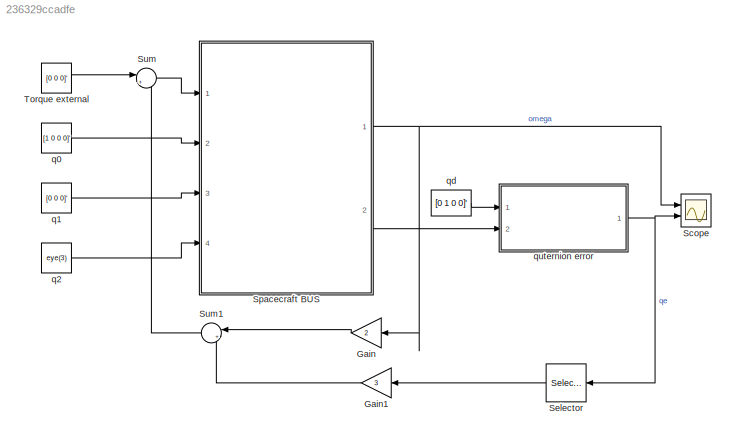
MODEL slx_236329ccadfe
KIND model
CONFIG AbsTol = auto
CONFIG EnableMultiTasking = off
CONFIG FixedStep = auto
CONFIG MaxStep = auto
CONFIG MinStep = auto
CONFIG RelTol = 1e-3
CONFIG SampleTimeConstraint = Unconstrained
CONFIG Solver = VariableStepAuto
CONFIG SolverName = VariableStepAuto
CONFIG StartTime = 0.0
CONFIG StopTime = 20
BLOCK [Gain] Gain
  Gain = 2
  OutDataTypeStr = Inherit: Inherit via internal rule
  ParamDataTypeStr = Inherit: Inherit via internal rule
  SaturateOnIntegerOverflow = off
BLOCK [Gain] Gain1
  Gain = 3
  OutDataTypeStr = Inherit: Inherit via internal rule
  ParamDataTypeStr = Inherit: Inherit via internal rule
  SaturateOnIntegerOverflow = off
BLOCK [Scope] Scope
  Floating = off
  NumInputPorts = 2
  Ports = [2]
  ScopeSpecificationString = Simulink.scopes.TimeScopeBlockCfg('CurrentConfiguration', extmgr.ConfigurationSet(extmgr.Configuration('Core','General UI',true),extmgr.Configuration('Core','Source UI',true),extmgr.Configuration('Sources','WiredSimulink',true),extmgr.Configuration('Visuals','Time Domain',true,'SerializedDisplays',{struct('MinYLimReal','-1.43596','MaxYLimReal','0.17312','YLabelReal','','MinYLimMag','0.00000','MaxY...<+2023ch>
BLOCK [Selector] Selector
  IndexOptions = Index vector (dialog)
  Indices = [1 2 3 ]
  InputPortWidth = 4
  OutputSizes = 1
  Ports = [1, 1]
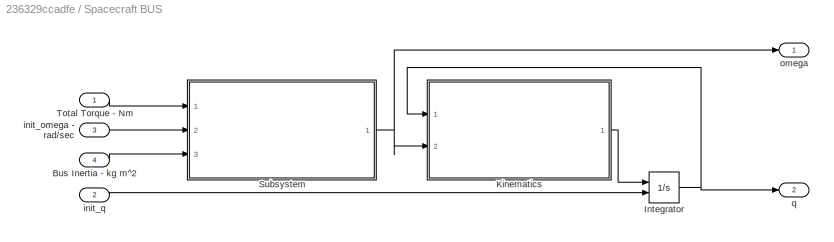
BLOCK [SubSystem] Spacecraft BUS
  Ports = [4, 2]
  RequestExecContextInheritance = off
BLOCK [Inport] Spacecraft BUS/Bus Inertia - kg m^2
  IconDisplay = Port number
  Port = 4
BLOCK [Integrator] Spacecraft BUS/Integrator
  InitialConditionSource = external
  Ports = [2, 1]
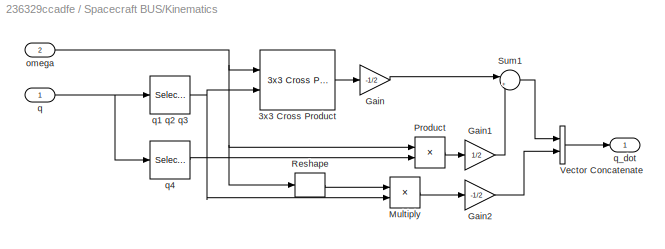
BLOCK [SubSystem] Spacecraft BUS/Kinematics
  Ports = [2, 1]
  RequestExecContextInheritance = off
BLOCK [Reference] Spacecraft BUS/Kinematics/3x3 Cross Product  REF=sharedutil/3x3 Cross Product
  Ports = [2, 1]
  SourceBlock = sharedutil/3x3 Cross Product
  SourceProductBaseCode = AE
  SourceProductName = Aerospace Blockset
  SourceType = CrossProduct
BLOCK [Gain] Spacecraft BUS/Kinematics/Gain
  Gain = -1/2
  OutDataTypeStr = Inherit: Inherit via internal rule
  ParamDataTypeStr = Inherit: Inherit via internal rule
  SaturateOnIntegerOverflow = off
BLOCK [Gain] Spacecraft BUS/Kinematics/Gain1
  Gain = 1/2
  OutDataTypeStr = Inherit: Inherit via internal rule
  ParamDataTypeStr = Inherit: Inherit via internal rule
  SaturateOnIntegerOverflow = off
BLOCK [Gain] Spacecraft BUS/Kinematics/Gain2
  Gain = -1/2
  OutDataTypeStr = Inherit: Inherit via internal rule
  ParamDataTypeStr = Inherit: Inherit via internal rule
  SaturateOnIntegerOverflow = off
BLOCK [Product] Spacecraft BUS/Kinematics/Multiply
  InputSameDT = off
  Multiplication = Matrix(*)
  OutDataTypeStr = Inherit: Inherit via internal rule
  Ports = [2, 1]
  RndMeth = Floor
  SaturateOnIntegerOverflow = off
BLOCK [Product] Spacecraft BUS/Kinematics/Product
  InputSameDT = off
  Multiplication = Matrix(*)
  OutDataTypeStr = Inherit: Inherit via internal rule
  Ports = [2, 1]
  RndMeth = Floor
  SaturateOnIntegerOverflow = off
BLOCK [Reshape] Spacecraft BUS/Kinematics/Reshape
  OutputDimensionality = Row vector (2-D)
  Ports = [1, 1]
BLOCK [Sum] Spacecraft BUS/Kinematics/Sum1
  IconShape = round
  InputSameDT = off
  Inputs = |++
  OutDataTypeStr = Inherit: Inherit via internal rule
  Ports = [2, 1]
  SaturateOnIntegerOverflow = off
BLOCK [Concatenate] Spacecraft BUS/Kinematics/Vector Concatenate
  Ports = [2, 1]
BLOCK [Inport] Spacecraft BUS/Kinematics/omega
  IconDisplay = Port number
  Port = 2
BLOCK [Inport] Spacecraft BUS/Kinematics/q
  IconDisplay = Port number
BLOCK [Selector] Spacecraft BUS/Kinematics/q1 q2 q3
  IndexOptions = Index vector (dialog)
  Indices = [1 2 3]
  InputPortWidth = 4
  OutputSizes = 1
  Ports = [1, 1]
BLOCK [Selector] Spacecraft BUS/Kinematics/q4
  IndexOptions = Index vector (dialog)
  Indices = [4]
  InputPortWidth = 4
  OutputSizes = 1
  Ports = [1, 1]
BLOCK [Outport] Spacecraft BUS/Kinematics/q_dot
  IconDisplay = Port number
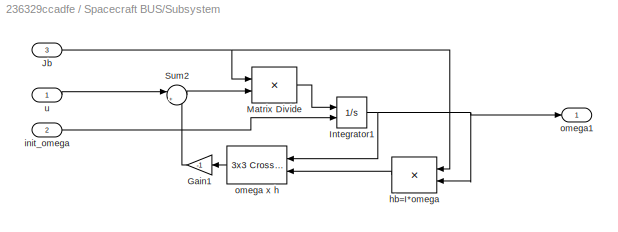
BLOCK [SubSystem] Spacecraft BUS/Subsystem
  Ports = [3, 1]
  RequestExecContextInheritance = off
BLOCK [Gain] Spacecraft BUS/Subsystem/Gain1
  Gain = -1
  OutDataTypeStr = Inherit: Inherit via internal rule
  ParamDataTypeStr = Inherit: Inherit via internal rule
  SaturateOnIntegerOverflow = off
BLOCK [Integrator] Spacecraft BUS/Subsystem/Integrator1
  InitialConditionSource = external
  Ports = [2, 1]
  ZeroCross = off
BLOCK [Inport] Spacecraft BUS/Subsystem/Jb
  IconDisplay = Port number
  Port = 3
BLOCK [Product] Spacecraft BUS/Subsystem/Matrix Divide
  InputSameDT = off
  Inputs = /*
  Multiplication = Matrix(*)
  OutDataTypeStr = Inherit: Inherit via internal rule
  Ports = [2, 1]
  RndMeth = Floor
  SaturateOnIntegerOverflow = off
BLOCK [Sum] Spacecraft BUS/Subsystem/Sum2
  IconShape = round
  InputSameDT = off
  Inputs = |++
  OutDataTypeStr = Inherit: Inherit via internal rule
  Ports = [2, 1]
  SaturateOnIntegerOverflow = off
BLOCK [Product] Spacecraft BUS/Subsystem/hb=I*omega
  InputSameDT = off
  Multiplication = Matrix(*)
  OutDataTypeStr = Inherit: Inherit via internal rule
  Ports = [2, 1]
  RndMeth = Floor
  SaturateOnIntegerOverflow = off
BLOCK [Inport] Spacecraft BUS/Subsystem/init_omega
  IconDisplay = Port number
  Port = 2
BLOCK [Reference] Spacecraft BUS/Subsystem/omega x h  REF=sharedutil/3x3 Cross Product
  Ports = [2, 1]
  SourceBlock = sharedutil/3x3 Cross Product
  SourceProductBaseCode = AE
  SourceProductName = Aerospace Blockset
  SourceType = CrossProduct
BLOCK [Outport] Spacecraft BUS/Subsystem/omega1
  IconDisplay = Port number
BLOCK [Inport] Spacecraft BUS/Subsystem/u
  IconDisplay = Port number
BLOCK [Inport] Spacecraft BUS/Total Torque - Nm
  IconDisplay = Port number
BLOCK [Inport] Spacecraft BUS/init_omega - rad//sec
  IconDisplay = Port number
  Port = 3
BLOCK [Inport] Spacecraft BUS/init_q
  IconDisplay = Port number
  Port = 2
BLOCK [Outport] Spacecraft BUS/omega
  IconDisplay = Port number
BLOCK [Outport] Spacecraft BUS/q
  IconDisplay = Port number
  Port = 2
BLOCK [Sum] Sum
  IconShape = round
  InputSameDT = off
  Inputs = |+-
  OutDataTypeStr = Inherit: Inherit via internal rule
  Ports = [2, 1]
  SaturateOnIntegerOverflow = off
BLOCK [Sum] Sum1
  IconShape = round
  InputSameDT = off
  Inputs = |++
  OutDataTypeStr = Inherit: Inherit via internal rule
  Ports = [2, 1]
  SaturateOnIntegerOverflow = off
BLOCK [Constant] Torque external
  Value = [0 0 0]'
BLOCK [Constant] q0
  Value = [1 0 0 0]'
BLOCK [Constant] q1
  Value = [0 0 0]'
BLOCK [Constant] q2
  Value = eye(3)
BLOCK [Constant] qd
  Value = [0 1 0 0]'
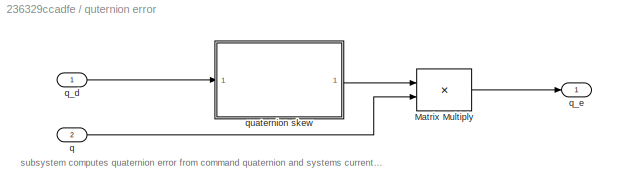
BLOCK [SubSystem] quternion error
  Ports = [2, 1]
  RequestExecContextInheritance = off
BLOCK [Product] quternion error/Matrix Multiply
  InputSameDT = off
  Multiplication = Matrix(*)
  OutDataTypeStr = Inherit: Inherit via internal rule
  Ports = [2, 1]
  RndMeth = Floor
  SaturateOnIntegerOverflow = off
BLOCK [Inport] quternion error/q
  IconDisplay = Port number
  Port = 2
BLOCK [Inport] quternion error/q_d
  IconDisplay = Port number
BLOCK [Outport] quternion error/q_e
  IconDisplay = Port number
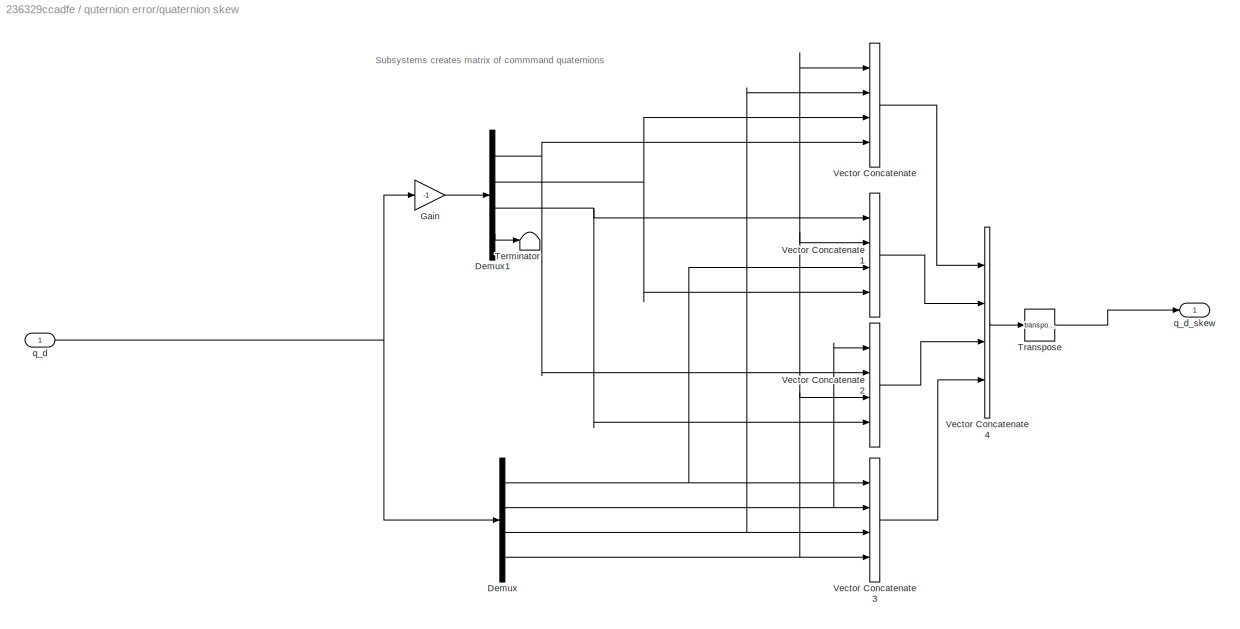
BLOCK [SubSystem] quternion error/quaternion skew
  Ports = [1, 1]
  RequestExecContextInheritance = off
BLOCK [Demux] quternion error/quaternion skew/Demux
  DisplayOption = bar
  Ports = [1, 4]
BLOCK [Demux] quternion error/quaternion skew/Demux1
  DisplayOption = bar
  Ports = [1, 4]
BLOCK [Gain] quternion error/quaternion skew/Gain
  Gain = -1
  OutDataTypeStr = Inherit: Inherit via internal rule
  ParamDataTypeStr = Inherit: Inherit via internal rule
  SaturateOnIntegerOverflow = off
BLOCK [Terminator] quternion error/quaternion skew/Terminator
BLOCK [Math] quternion error/quaternion skew/Transpose
  Operator = transpose
  Ports = [1, 1]
BLOCK [Concatenate] quternion error/quaternion skew/Vector Concatenate
  NumInputs = 4
  Ports = [4, 1]
BLOCK [Concatenate] quternion error/quaternion skew/Vector Concatenate1
  NumInputs = 4
  Ports = [4, 1]
BLOCK [Concatenate] quternion error/quaternion skew/Vector Concatenate2
  NumInputs = 4
  Ports = [4, 1]
BLOCK [Concatenate] quternion error/quaternion skew/Vector Concatenate3
  NumInputs = 4
  Ports = [4, 1]
BLOCK [Concatenate] quternion error/quaternion skew/Vector Concatenate4
  ConcatenateDimension = [2]
  Mode = Multidimensional array
  NumInputs = 4
  Ports = [4, 1]
BLOCK [Inport] quternion error/quaternion skew/q_d
  IconDisplay = Port number
BLOCK [Outport] quternion error/quaternion skew/q_d_skew
  IconDisplay = Port number
ANNOTATION quternion error: subsystem computes quaternion error from command quaternion and systems current quaternion
ANNOTATION quternion error/quaternion skew: Subsystems creates matrix of commmand quaternions
LINE Gain1:1 -> Sum1:2
LINE Gain:1 -> Sum1:1
LINE Selector:1 -> Gain1:1
LINE Spacecraft BUS/Bus Inertia - kg m^2:1 -> Spacecraft BUS/Subsystem:3
NET Spacecraft BUS/Integrator:1 -> Spacecraft BUS/Kinematics:1, Spacecraft BUS/q:1
LINE Spacecraft BUS/Kinematics/3x3 Cross Product:1 -> Spacecraft BUS/Kinematics/Gain:1
LINE Spacecraft BUS/Kinematics/Gain1:1 -> Spacecraft BUS/Kinematics/Sum1:2
LINE Spacecraft BUS/Kinematics/Gain2:1 -> Spacecraft BUS/Kinematics/Vector Concatenate:2
LINE Spacecraft BUS/Kinematics/Gain:1 -> Spacecraft BUS/Kinematics/Sum1:1
LINE Spacecraft BUS/Kinematics/Multiply:1 -> Spacecraft BUS/Kinematics/Gain2:1
LINE Spacecraft BUS/Kinematics/Product:1 -> Spacecraft BUS/Kinematics/Gain1:1
LINE Spacecraft BUS/Kinematics/Reshape:1 -> Spacecraft BUS/Kinematics/Multiply:1
LINE Spacecraft BUS/Kinematics/Sum1:1 -> Spacecraft BUS/Kinematics/Vector Concatenate:1
LINE Spacecraft BUS/Kinematics/Vector Concatenate:1 -> Spacecraft BUS/Kinematics/q_dot:1
NET Spacecraft BUS/Kinematics/omega:1 -> Spacecraft BUS/Kinematics/3x3 Cross Product:1, Spacecraft BUS/Kinematics/Product:1, Spacecraft BUS/Kinematics/Reshape:1
NET Spacecraft BUS/Kinematics/q1 q2 q3:1 -> Spacecraft BUS/Kinematics/3x3 Cross Product:2, Spacecraft BUS/Kinematics/Multiply:2
LINE Spacecraft BUS/Kinematics/q4:1 -> Spacecraft BUS/Kinematics/Product:2
NET Spacecraft BUS/Kinematics/q:1 -> Spacecraft BUS/Kinematics/q1 q2 q3:1, Spacecraft BUS/Kinematics/q4:1
LINE Spacecraft BUS/Kinematics:1 -> Spacecraft BUS/Integrator:1
LINE Spacecraft BUS/Subsystem/Gain1:1 -> Spacecraft BUS/Subsystem/Sum2:2
NET Spacecraft BUS/Subsystem/Integrator1:1 -> Spacecraft BUS/Subsystem/hb=I*omega:2, Spacecraft BUS/Subsystem/omega x h:1, Spacecraft BUS/Subsystem/omega1:1
NET Spacecraft BUS/Subsystem/Jb:1 -> Spacecraft BUS/Subsystem/Matrix Divide:1, Spacecraft BUS/Subsystem/hb=I*omega:1
LINE Spacecraft BUS/Subsystem/Matrix Divide:1 -> Spacecraft BUS/Subsystem/Integrator1:1
LINE Spacecraft BUS/Subsystem/Sum2:1 -> Spacecraft BUS/Subsystem/Matrix Divide:2
LINE Spacecraft BUS/Subsystem/hb=I*omega:1 -> Spacecraft BUS/Subsystem/omega x h:2
LINE Spacecraft BUS/Subsystem/init_omega:1 -> Spacecraft BUS/Subsystem/Integrator1:2
LINE Spacecraft BUS/Subsystem/omega x h:1 -> Spacecraft BUS/Subsystem/Gain1:1
LINE Spacecraft BUS/Subsystem/u:1 -> Spacecraft BUS/Subsystem/Sum2:1
NET Spacecraft BUS/Subsystem:1 -> Spacecraft BUS/Kinematics:2, Spacecraft BUS/omega:1
LINE Spacecraft BUS/Total Torque - Nm:1 -> Spacecraft BUS/Subsystem:1
LINE Spacecraft BUS/init_omega - rad//sec:1 -> Spacecraft BUS/Subsystem:2
LINE Spacecraft BUS/init_q:1 -> Spacecraft BUS/Integrator:2
NET Spacecraft BUS:1 -> Gain:1, Scope:1
LINE Spacecraft BUS:2 -> quternion error:2
LINE Sum1:1 -> Sum:2
LINE Sum:1 -> Spacecraft BUS:1
LINE Torque external:1 -> Sum:1
LINE q0:1 -> Spacecraft BUS:2
LINE q1:1 -> Spacecraft BUS:3
LINE q2:1 -> Spacecraft BUS:4
LINE qd:1 -> quternion error:1
LINE quternion error/Matrix Multiply:1 -> quternion error/q_e:1
LINE quternion error/q:1 -> quternion error/Matrix Multiply:2
LINE quternion error/q_d:1 -> quternion error/quaternion skew:1
NET quternion error/quaternion skew/Demux1:1 -> quternion error/quaternion skew/Vector Concatenate2:2, quternion error/quaternion skew/Vector Concatenate:4
NET quternion error/quaternion skew/Demux1:2 -> quternion error/quaternion skew/Vector Concatenate1:4, quternion error/quaternion skew/Vector Concatenate:3
NET quternion error/quaternion skew/Demux1:3 -> quternion error/quaternion skew/Vector Concatenate1:1, quternion error/quaternion skew/Vector Concatenate2:4
LINE quternion error/quaternion skew/Demux1:4 -> quternion error/quaternion skew/Terminator:1
NET quternion error/quaternion skew/Demux:1 -> quternion error/quaternion skew/Vector Concatenate1:3, quternion error/quaternion skew/Vector Concatenate3:1
NET quternion error/quaternion skew/Demux:2 -> quternion error/quaternion skew/Vector Concatenate2:1, quternion error/quaternion skew/Vector Concatenate3:2
NET quternion error/quaternion skew/Demux:3 -> quternion error/quaternion skew/Vector Concatenate3:3, quternion error/quaternion skew/Vector Concatenate:2
NET quternion error/quaternion skew/Demux:4 -> quternion error/quaternion skew/Vector Concatenate1:2, quternion error/quaternion skew/Vector Concatenate2:3, quternion error/quaternion skew/Vector Concatenate3:4, quternion error/quaternion skew/Vector Concatenate:1
LINE quternion error/quaternion skew/Gain:1 -> quternion error/quaternion skew/Demux1:1
LINE quternion error/quaternion skew/Transpose:1 -> quternion error/quaternion skew/q_d_skew:1
LINE quternion error/quaternion skew/Vector Concatenate1:1 -> quternion error/quaternion skew/Vector Concatenate4:2
LINE quternion error/quaternion skew/Vector Concatenate2:1 -> quternion error/quaternion skew/Vector Concatenate4:3
LINE quternion error/quaternion skew/Vector Concatenate3:1 -> quternion error/quaternion skew/Vector Concatenate4:4
LINE quternion error/quaternion skew/Vector Concatenate4:1 -> quternion error/quaternion skew/Transpose:1
LINE quternion error/quaternion skew/Vector Concatenate:1 -> quternion error/quaternion skew/Vector Concatenate4:1
NET quternion error/quaternion skew/q_d:1 -> quternion error/quaternion skew/Demux:1, quternion error/quaternion skew/Gain:1
LINE quternion error/quaternion skew:1 -> quternion error/Matrix Multiply:1
NET quternion error:1 -> Scope:2, Selector:1
note: NET lines group one-source signal fan-out (src -> all destinations, sorted); 1:1 wires keep LINE
